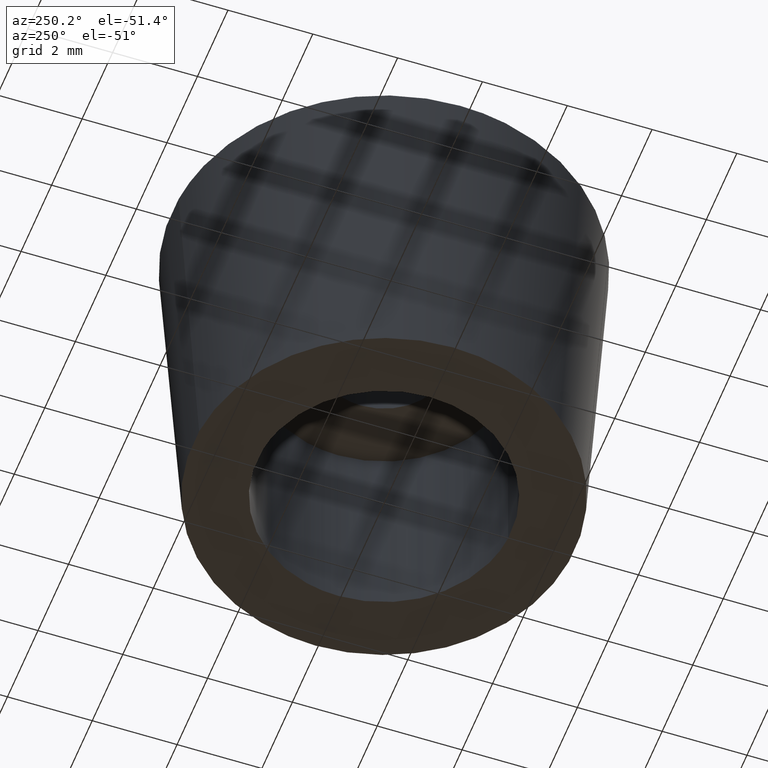
[diagram: clean part render]
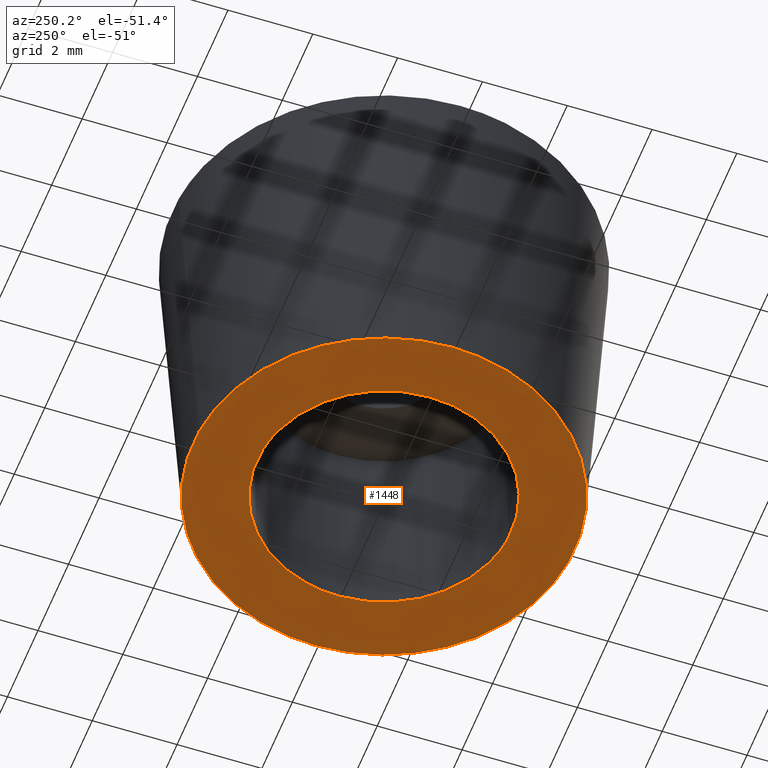
[diagram: same view with one face highlighted and labeled with its STEP entity id]
A machine part, auxiliary view. The second image highlights one B-rep face of the part: STEP entity #1448.
In plain terms, the highlighted face is a freeform B-spline surface patch.
Its self-contained STEP definition (entity closure, byte-faithful):
#515=CARTESIAN_POINT('',(-4.500000000000000,0.0,0.0));
#516=VERTEX_POINT('',#515);
#517=CARTESIAN_POINT('',(-0.353062357360180,4.486128245514117,-0.000000598405103));
#518=VERTEX_POINT('',#517);
#519=CARTESIAN_POINT('',(-4.500000000000000,0.0,0.0));
#520=CARTESIAN_POINT('',(-4.500000000000000,4.159760533424683,0.0));
#521=CARTESIAN_POINT('',(-0.353062357360180,4.486128245514117,-0.000000598405103));
#529=(BOUNDED_CURVE()B_SPLINE_CURVE(2,(#519,#520,#521),.UNSPECIFIED.,.F.,.U.)B_SPLINE_CURVE_WITH_KNOTS((3,3),(0.0,0.236331437068440),.UNSPECIFIED.)CURVE()GEOMETRIC_REPRESENTATION_ITEM()RATIONAL_B_SPLINE_CURVE((1.0,0.723120498760862,0.969723640902832))REPRESENTATION_ITEM(''));
#530=EDGE_CURVE('',#516,#518,#529,.T.);
#532=CARTESIAN_POINT('',(0.353062357360179,-4.486128245514117,-0.000000598405103));
#533=VERTEX_POINT('',#532);
#534=CARTESIAN_POINT('',(0.353062357360179,-4.486128245514117,-0.000000598405103));
#535=CARTESIAN_POINT('',(0.176803688009538,-4.500000000000000,0.0));
#536=CARTESIAN_POINT('',(0.0,-4.500000000000000,0.0));
#537=CARTESIAN_POINT('',(-4.500000000000000,-4.500000000000000,0.0));
#538=CARTESIAN_POINT('',(-4.500000000000000,0.0,0.0));
#546=(BOUNDED_CURVE()B_SPLINE_CURVE(2,(#534,#535,#536,#537,#538),.UNSPECIFIED.,.F.,.U.)B_SPLINE_CURVE_WITH_KNOTS((3,2,3),(0.736331437068440,0.750000000000000,1.0),.UNSPECIFIED.)CURVE()GEOMETRIC_REPRESENTATION_ITEM()RATIONAL_B_SPLINE_CURVE((0.969723640902832,0.983986282425685,1.0,0.707106781186547,1.0))REPRESENTATION_ITEM(''));
#547=EDGE_CURVE('',#533,#516,#546,.T.);
#614=CARTESIAN_POINT('',(4.500000000000000,0.0,0.0));
#615=VERTEX_POINT('',#614);
#616=CARTESIAN_POINT('',(-0.353062357360180,4.486128245514117,-0.000000598405103));
#617=CARTESIAN_POINT('',(-0.176803688009538,4.500000000000000,0.0));
#618=CARTESIAN_POINT('',(0.0,4.500000000000000,0.0));
#619=CARTESIAN_POINT('',(4.500000000000000,4.500000000000000,0.0));
#620=CARTESIAN_POINT('',(4.500000000000000,0.0,0.0));
#628=(BOUNDED_CURVE()B_SPLINE_CURVE(2,(#616,#617,#618,#619,#620),.UNSPECIFIED.,.F.,.U.)B_SPLINE_CURVE_WITH_KNOTS((3,2,3),(0.236331437068440,0.250000000000000,0.500000000000000),.UNSPECIFIED.)CURVE()GEOMETRIC_REPRESENTATION_ITEM()RATIONAL_B_SPLINE_CURVE((0.969723640902832,0.983986282425685,1.0,0.707106781186547,1.0))REPRESENTATION_ITEM(''));
#629=EDGE_CURVE('',#518,#615,#628,.T.);
#663=CARTESIAN_POINT('',(4.500000000000000,0.0,0.0));
#664=CARTESIAN_POINT('',(4.500000000000000,-4.159760533424683,0.0));
#665=CARTESIAN_POINT('',(0.353062357360179,-4.486128245514117,-0.000000598405103));
#673=(BOUNDED_CURVE()B_SPLINE_CURVE(2,(#663,#664,#665),.UNSPECIFIED.,.F.,.U.)B_SPLINE_CURVE_WITH_KNOTS((3,3),(0.500000000000000,0.736331437068440),.UNSPECIFIED.)CURVE()GEOMETRIC_REPRESENTATION_ITEM()RATIONAL_B_SPLINE_CURVE((1.0,0.723120498760862,0.969723640902832))REPRESENTATION_ITEM(''));
#674=EDGE_CURVE('',#615,#533,#673,.T.);
#1267=CARTESIAN_POINT('',(-0.354099495451284,2.979028960468613,-5.969898E-015));
#1268=VERTEX_POINT('',#1267);
#1269=CARTESIAN_POINT('',(3.0,0.0,0.0));
#1270=VERTEX_POINT('',#1269);
#1271=CARTESIAN_POINT('',(-0.354099495451284,2.979028960468613,-5.969898E-015));
#1272=CARTESIAN_POINT('',(-0.177670737736467,3.0,0.0));
#1273=CARTESIAN_POINT('',(0.0,3.0,0.0));
#1274=CARTESIAN_POINT('',(3.0,3.0,0.0));
#1275=CARTESIAN_POINT('',(3.0,0.0,0.0));
#1283=(BOUNDED_CURVE()B_SPLINE_CURVE(2,(#1271,#1272,#1273,#1274,#1275),.UNSPECIFIED.,.F.,.U.)B_SPLINE_CURVE_WITH_KNOTS((3,2,3),(0.229562655538124,0.250000000000000,0.500000000000000),.UNSPECIFIED.)CURVE()GEOMETRIC_REPRESENTATION_ITEM()RATIONAL_B_SPLINE_CURVE((0.956027110959706,0.976056161586248,1.0,0.707106781186548,1.0))REPRESENTATION_ITEM(''));
#1284=EDGE_CURVE('',#1268,#1270,#1283,.T.);
#1286=CARTESIAN_POINT('',(0.183142456747576,-2.994404588649708,-6.543377E-015));
#1287=VERTEX_POINT('',#1286);
#1288=CARTESIAN_POINT('',(3.0,0.0,0.0));
#1289=CARTESIAN_POINT('',(2.999999999999999,-2.822121186223181,0.0));
#1290=CARTESIAN_POINT('',(0.183142456747576,-2.994404588649708,-6.543377E-015));
#1298=(BOUNDED_CURVE()B_SPLINE_CURVE(2,(#1288,#1289,#1290),.UNSPECIFIED.,.F.,.U.)B_SPLINE_CURVE_WITH_KNOTS((3,3),(0.500000000000000,0.739333144437917),.UNSPECIFIED.)CURVE()GEOMETRIC_REPRESENTATION_ITEM()RATIONAL_B_SPLINE_CURVE((1.0,0.719603779827335,0.976072432154112))REPRESENTATION_ITEM(''));
#1299=EDGE_CURVE('',#1270,#1287,#1298,.T.);
#1366=CARTESIAN_POINT('',(-3.0,0.0,0.0));
#1367=VERTEX_POINT('',#1366);
#1368=CARTESIAN_POINT('',(-3.0,0.0,0.0));
#1369=CARTESIAN_POINT('',(-3.000000000000000,2.664526467843501,0.0));
#1370=CARTESIAN_POINT('',(-0.354099495451284,2.979028960468613,-5.969898E-015));
#1378=(BOUNDED_CURVE()B_SPLINE_CURVE(2,(#1368,#1369,#1370),.UNSPECIFIED.,.F.,.U.)B_SPLINE_CURVE_WITH_KNOTS((3,3),(0.0,0.229562655538124),.UNSPECIFIED.)CURVE()GEOMETRIC_REPRESENTATION_ITEM()RATIONAL_B_SPLINE_CURVE((1.0,0.731050619600300,0.956027110959706))REPRESENTATION_ITEM(''));
#1379=EDGE_CURVE('',#1367,#1268,#1378,.T.);
#1413=CARTESIAN_POINT('',(0.183142456747576,-2.994404588649708,-6.543377E-015));
#1414=CARTESIAN_POINT('',(0.091656704534628,-3.000000000000001,0.0));
#1415=CARTESIAN_POINT('',(0.0,-3.0,0.0));
#1416=CARTESIAN_POINT('',(-3.0,-3.0,0.0));
#1417=CARTESIAN_POINT('',(-3.0,0.0,0.0));
#1425=(BOUNDED_CURVE()B_SPLINE_CURVE(2,(#1413,#1414,#1415,#1416,#1417),.UNSPECIFIED.,.F.,.U.)B_SPLINE_CURVE_WITH_KNOTS((3,2,3),(0.739333144437917,0.750000000000000,1.0),.UNSPECIFIED.)CURVE()GEOMETRIC_REPRESENTATION_ITEM()RATIONAL_B_SPLINE_CURVE((0.976072432154112,0.987503001359213,1.0,0.707106781186548,1.0))REPRESENTATION_ITEM(''));
#1426=EDGE_CURVE('',#1287,#1367,#1425,.T.);
#1431=CARTESIAN_POINT('',(-4.949549982556253,-4.948176387270838,0.0));
#1432=CARTESIAN_POINT('',(4.949550223955065,-4.948176387270838,0.0));
#1433=CARTESIAN_POINT('',(-4.949549982556253,4.948176628669650,0.0));
#1434=CARTESIAN_POINT('',(4.949550223955065,4.948176628669650,0.0));
#1435=B_SPLINE_SURFACE_WITH_KNOTS('',1,1,((#1431,#1433),(#1432,#1434)),.UNSPECIFIED.,.F.,.F.,.U.,(2,2),(2,2),(0.0,9.899100206511317),(0.0,9.896353015940488),.UNSPECIFIED.);
#1436=ORIENTED_EDGE('',*,*,#530,.T.);
#1437=ORIENTED_EDGE('',*,*,#629,.T.);
#1438=ORIENTED_EDGE('',*,*,#674,.T.);
#1439=ORIENTED_EDGE('',*,*,#547,.T.);
#1440=EDGE_LOOP('',(#1436,#1437,#1438,#1439));
#1441=FACE_OUTER_BOUND('',#1440,.T.);
#1442=ORIENTED_EDGE('',*,*,#1299,.F.);
#1443=ORIENTED_EDGE('',*,*,#1284,.F.);
#1444=ORIENTED_EDGE('',*,*,#1379,.F.);
#1445=ORIENTED_EDGE('',*,*,#1426,.F.);
#1446=EDGE_LOOP('',(#1442,#1443,#1444,#1445));
#1447=FACE_BOUND('',#1446,.T.);
#1448=ADVANCED_FACE('',(#1441,#1447),#1435,.F.);